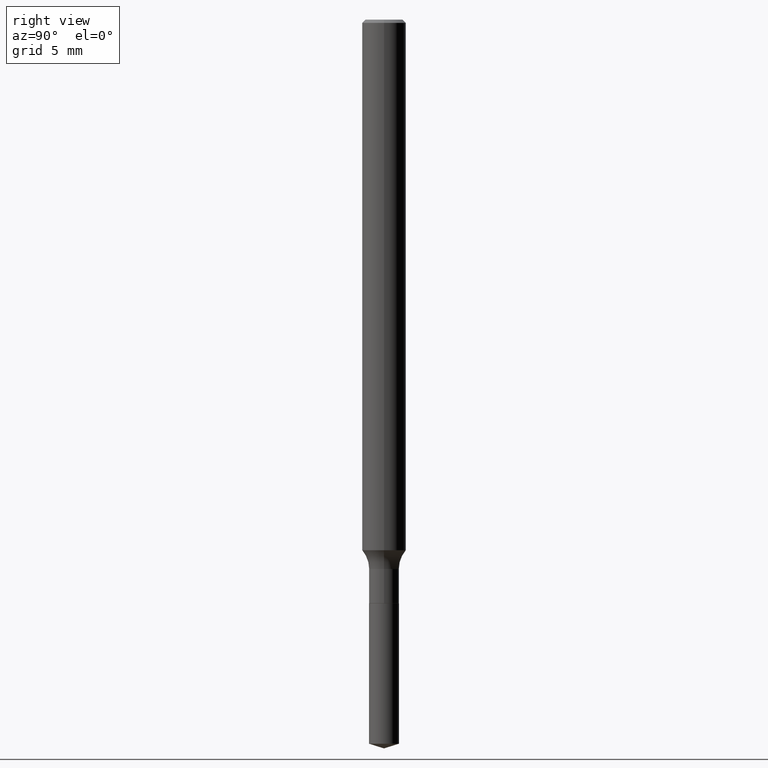
[diagram: clean part render]
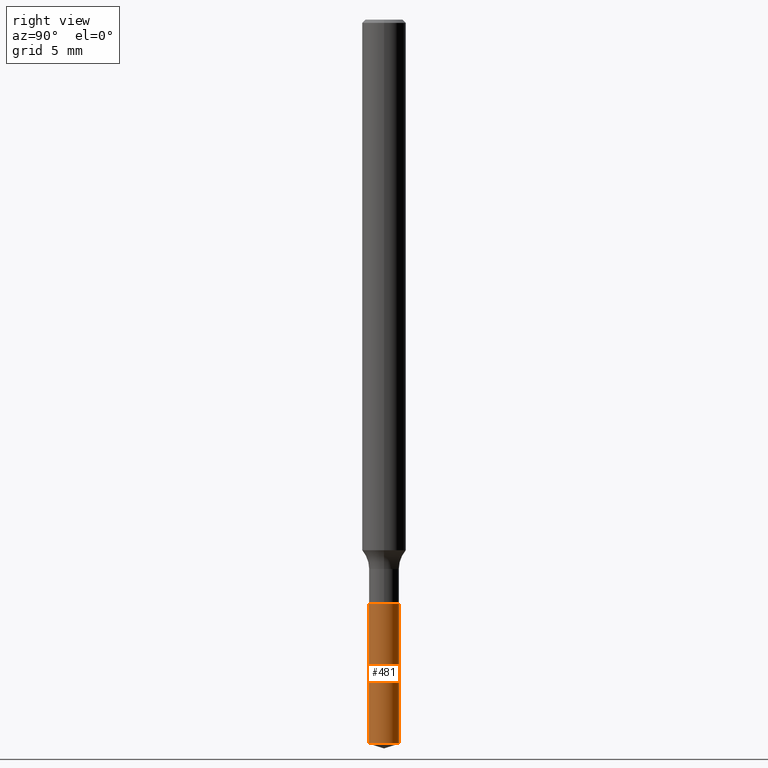
[diagram: same view with one face highlighted and labeled with its STEP entity id]
A machine part, right view. The second image highlights one B-rep face of the part: STEP entity #481.
In plain terms, the highlighted cylindrical surface (edge-blend (fillet) strip) has radius 1.0249 mm, axis along (-0, 0, 1).
Its self-contained STEP definition (entity closure, byte-faithful):
#4 = FACE_OUTER_BOUND ( 'NONE', #273, .T. ) ;
#22 = DIRECTION ( 'NONE',  ( -2.445541806582640736E-29, 3.491376798118994826E-15, 1.000000000000000000 ) ) ;
#26 = AXIS2_PLACEMENT_3D ( 'NONE', #43, #80, #188 ) ;
#43 = CARTESIAN_POINT ( 'NONE',  ( 4.782821007710988017E-29, -6.828521702465810042E-15, -1.955777693868733236 ) ) ;
#48 = CARTESIAN_POINT ( 'NONE',  ( 2.867039938792482775E-16, 0.04034999999999448750, -1.576800000000000201 ) ) ;
#59 = ORIENTED_EDGE ( 'NONE', *, *, #230, .T. ) ;
#80 = DIRECTION ( 'NONE',  ( -2.445541806582640736E-29, 3.491376798118994826E-15, 1.000000000000000000 ) ) ;
#113 = AXIS2_PLACEMENT_3D ( 'NONE', #157, #22, #215 ) ;
#117 = DIRECTION ( 'NONE',  ( -2.445541806582640736E-29, 3.491376798118994432E-15, 1.000000000000000000 ) ) ;
#122 = CARTESIAN_POINT ( 'NONE',  ( -2.817625440445929586E-16, -0.04035000000000681791, -1.955777693868732792 ) ) ;
#128 = CIRCLE ( 'NONE', #367, 0.04034999999999999698 ) ;
#137 = CIRCLE ( 'NONE', #26, 0.04034999999999999698 ) ;
#150 = VECTOR ( 'NONE', #117, 39.37007874015748143 ) ;
#151 = CARTESIAN_POINT ( 'NONE',  ( 3.856015213592723441E-29, -5.505367775087871380E-15, -1.576799999999999979 ) ) ;
#157 = CARTESIAN_POINT ( 'NONE',  ( 3.856015213592723441E-29, -5.505367775087871380E-15, -1.576799999999999979 ) ) ;
#163 = ORIENTED_EDGE ( 'NONE', *, *, #251, .F. ) ;
#168 = DIRECTION ( 'NONE',  ( -2.445541806582640736E-29, 3.491376798118994432E-15, 1.000000000000000000 ) ) ;
#172 = CARTESIAN_POINT ( 'NONE',  ( -2.817625440446022277E-16, -0.04035000000000549952, -1.576799999999999757 ) ) ;
#188 = DIRECTION ( 'NONE',  ( -6.982962677686266711E-15, -1.000000000000000000, 6.770379166454184154E-15 ) ) ;
#198 = ORIENTED_EDGE ( 'NONE', *, *, #291, .T. ) ;
#215 = DIRECTION ( 'NONE',  ( -6.982962677686266711E-15, -1.000000000000000000, 6.770379166454184154E-15 ) ) ;
#220 = LINE ( 'NONE', #172, #258 ) ;
#230 = EDGE_CURVE ( 'NONE', #429, #403, #350, .T. ) ;
#243 = CYLINDRICAL_SURFACE ( 'NONE', #113, 0.04034999999999999698 ) ;
#251 = EDGE_CURVE ( 'NONE', #307, #403, #128, .T. ) ;
#258 = VECTOR ( 'NONE', #168, 39.37007874015748143 ) ;
#267 = DIRECTION ( 'NONE',  ( -2.445541806582640736E-29, 3.491376798118994826E-15, 1.000000000000000000 ) ) ;
#273 = EDGE_LOOP ( 'NONE', ( #198, #59, #163, #388 ) ) ;
#291 = EDGE_CURVE ( 'NONE', #415, #429, #137, .T. ) ;
#307 = VERTEX_POINT ( 'NONE', #457 ) ;
#346 = CARTESIAN_POINT ( 'NONE',  ( 2.867039938792389098E-16, 0.04034999999999448750, -1.576800000000000201 ) ) ;
#350 = LINE ( 'NONE', #346, #150 ) ;
#367 = AXIS2_PLACEMENT_3D ( 'NONE', #151, #267, #386 ) ;
#386 = DIRECTION ( 'NONE',  ( -6.982962677686266711E-15, -1.000000000000000000, 6.770379166454184154E-15 ) ) ;
#388 = ORIENTED_EDGE ( 'NONE', *, *, #486, .F. ) ;
#403 = VERTEX_POINT ( 'NONE', #48 ) ;
#415 = VERTEX_POINT ( 'NONE', #122 ) ;
#427 = CARTESIAN_POINT ( 'NONE',  ( 2.867039938792481296E-16, 0.04034999999999315523, -1.955777693868733458 ) ) ;
#429 = VERTEX_POINT ( 'NONE', #427 ) ;
#457 = CARTESIAN_POINT ( 'NONE',  ( -2.817625440446022277E-16, -0.04035000000000549952, -1.576799999999999757 ) ) ;
#481 = ADVANCED_FACE ( 'NONE', ( #4 ), #243, .T. ) ;
#486 = EDGE_CURVE ( 'NONE', #415, #307, #220, .T. ) ;